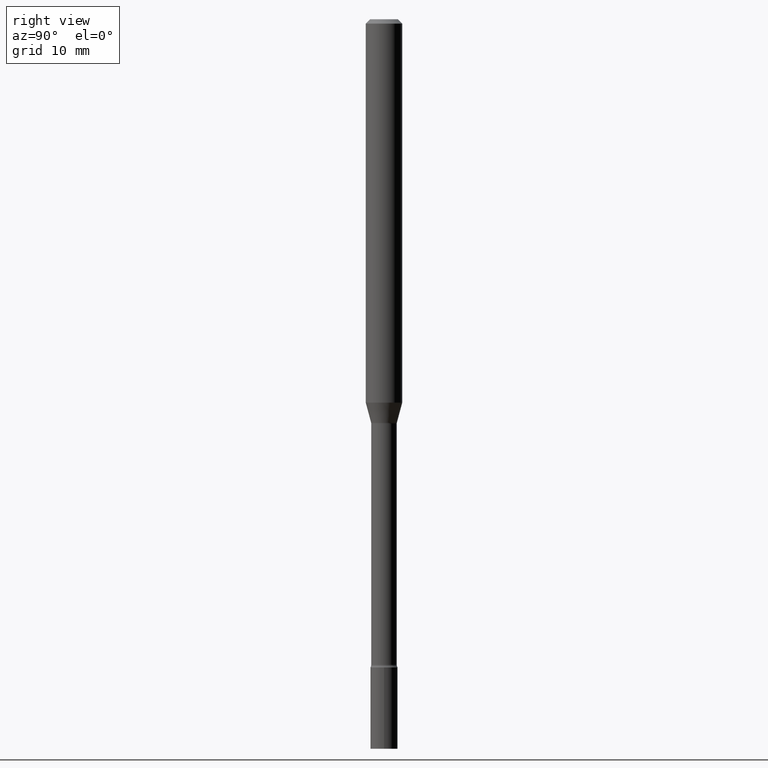
[diagram: clean part render]
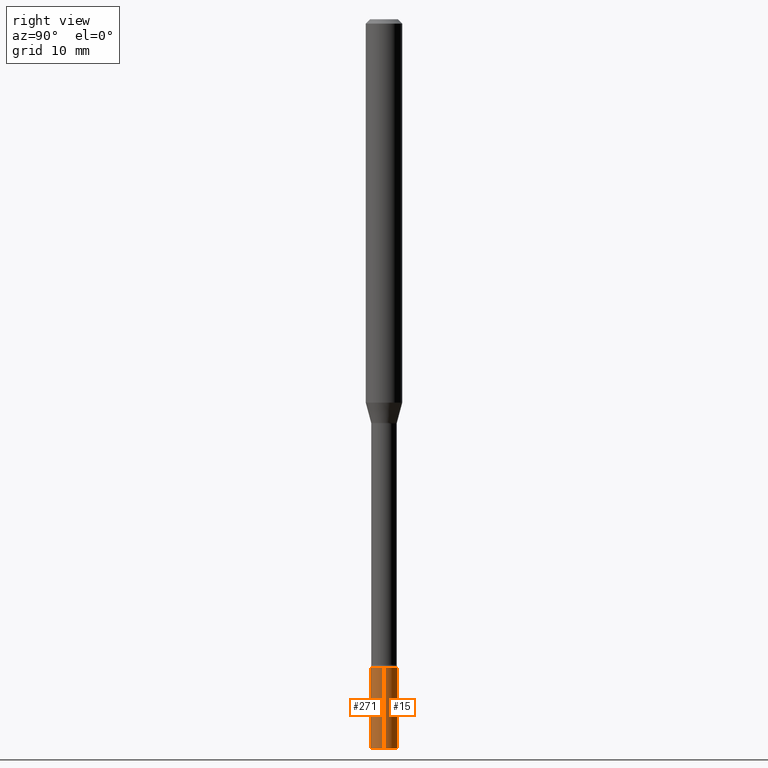
[diagram: same view with one multi-face feature highlighted, each face labeled with its STEP entity id]
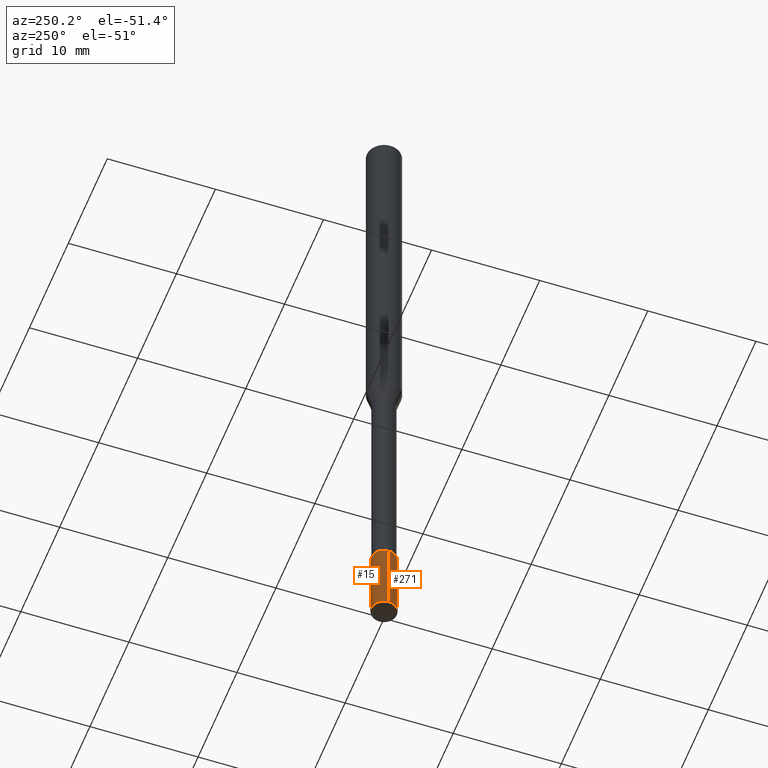
[diagram: same view with one multi-face feature highlighted, each face labeled with its STEP entity id]
A machine part, right view. The highlighted faces form ONE feature: a constant-radius fillet chain: 2 tangent blend faces with common blend radius 1.1811 mm. The faces share edges in the B-rep.
A second angle (auxiliary view) of the same feature is appended — it is thin or edge-on in the first view.
Their STEP definitions:
[1] entity #271 (Cylinder):
#7 = CARTESIAN_POINT ( 'NONE',  ( 0.000000000000000000, 0.000000000000000000, 0.000000000000000000 ) ) ;
#26 = DIRECTION ( 'NONE',  ( 1.000000000000000000, -6.982962677686260400E-15, 0.000000000000000000 ) ) ;
#46 = DIRECTION ( 'NONE',  ( -2.445468806185136597E-29, 3.491481338843145583E-15, 1.000000000000000000 ) ) ;
#47 = FACE_OUTER_BOUND ( 'NONE', #159, .T. ) ;
#48 = EDGE_CURVE ( 'NONE', #72, #488, #349, .T. ) ;
#72 = VERTEX_POINT ( 'NONE', #146 ) ;
#95 = ORIENTED_EDGE ( 'NONE', *, *, #343, .F. ) ;
#103 = VECTOR ( 'NONE', #460, 39.37007874015748143 ) ;
#104 = CIRCLE ( 'NONE', #451, 0.04649999999999999967 ) ;
#106 = LINE ( 'NONE', #258, #103 ) ;
#109 = EDGE_CURVE ( 'NONE', #488, #370, #106, .T. ) ;
#132 = CARTESIAN_POINT ( 'NONE',  ( 6.113672015462842613E-29, -8.728703347107864943E-15, -2.500000000000000000 ) ) ;
#146 = CARTESIAN_POINT ( 'NONE',  ( -0.04649999999999999967, -7.911239328210799240E-15, -2.500000000000000000 ) ) ;
#159 = EDGE_LOOP ( 'NONE', ( #437, #319, #234, #95 ) ) ;
#165 = DIRECTION ( 'NONE',  ( -2.445468806185136597E-29, 3.491481338843145583E-15, 1.000000000000000000 ) ) ;
#176 = CYLINDRICAL_SURFACE ( 'NONE', #303, 0.04649999999999999967 ) ;
#220 = EDGE_CURVE ( 'NONE', #72, #402, #284, .T. ) ;
#234 = ORIENTED_EDGE ( 'NONE', *, *, #109, .T. ) ;
#236 = CARTESIAN_POINT ( 'NONE',  ( 0.04649999999999999967, -8.079287818083037216E-15, -2.221000000000000085 ) ) ;
#244 = CARTESIAN_POINT ( 'NONE',  ( -0.04649999999999999967, 3.304023721284465841E-16, -2.287304816968531530E-30 ) ) ;
#258 = CARTESIAN_POINT ( 'NONE',  ( 0.04649999999999999967, -3.247077645124114474E-16, 2.267422200745110326E-30 ) ) ;
#271 = ADVANCED_FACE ( 'NONE', ( #47 ), #176, .T. ) ;
#284 = LINE ( 'NONE', #244, #301 ) ;
#290 = CARTESIAN_POINT ( 'NONE',  ( -0.04649999999999999967, -7.911239328210799240E-15, -2.221000000000000085 ) ) ;
#301 = VECTOR ( 'NONE', #410, 39.37007874015748143 ) ;
#303 = AXIS2_PLACEMENT_3D ( 'NONE', #7, #165, #404 ) ;
#319 = ORIENTED_EDGE ( 'NONE', *, *, #48, .T. ) ;
#343 = EDGE_CURVE ( 'NONE', #402, #370, #104, .T. ) ;
#349 = CIRCLE ( 'NONE', #372, 0.04649999999999999967 ) ;
#357 = DIRECTION ( 'NONE',  ( -2.445468806185136597E-29, 3.491481338843145583E-15, 1.000000000000000000 ) ) ;
#362 = CARTESIAN_POINT ( 'NONE',  ( 5.431386218537188310E-29, -7.754580053570626508E-15, -2.221000000000000085 ) ) ;
#370 = VERTEX_POINT ( 'NONE', #236 ) ;
#372 = AXIS2_PLACEMENT_3D ( 'NONE', #132, #46, #26 ) ;
#402 = VERTEX_POINT ( 'NONE', #290 ) ;
#404 = DIRECTION ( 'NONE',  ( 1.000000000000000000, -6.982962677686267499E-15, 4.876176775795936353E-29 ) ) ;
#410 = DIRECTION ( 'NONE',  ( -2.445468806185136877E-29, 3.491481338843145188E-15, 1.000000000000000000 ) ) ;
#414 = CARTESIAN_POINT ( 'NONE',  ( 0.04649999999999999967, -9.053411111620275650E-15, -2.500000000000000000 ) ) ;
#437 = ORIENTED_EDGE ( 'NONE', *, *, #220, .F. ) ;
#451 = AXIS2_PLACEMENT_3D ( 'NONE', #362, #357, #482 ) ;
#460 = DIRECTION ( 'NONE',  ( -2.445468806185136877E-29, 3.491481338843145188E-15, 1.000000000000000000 ) ) ;
#482 = DIRECTION ( 'NONE',  ( 1.000000000000000000, -6.982962677686260400E-15, 0.000000000000000000 ) ) ;
#488 = VERTEX_POINT ( 'NONE', #414 ) ;
[2] entity #15 (Cylinder):
#15 = ADVANCED_FACE ( 'NONE', ( #445 ), #293, .T. ) ;
#72 = VERTEX_POINT ( 'NONE', #146 ) ;
#80 = DIRECTION ( 'NONE',  ( -2.445468806185136597E-29, 3.491481338843145583E-15, 1.000000000000000000 ) ) ;
#90 = DIRECTION ( 'NONE',  ( 1.000000000000000000, -6.982962677686260400E-15, 0.000000000000000000 ) ) ;
#103 = VECTOR ( 'NONE', #460, 39.37007874015748143 ) ;
#106 = LINE ( 'NONE', #258, #103 ) ;
#109 = EDGE_CURVE ( 'NONE', #488, #370, #106, .T. ) ;
#134 = ORIENTED_EDGE ( 'NONE', *, *, #109, .F. ) ;
#146 = CARTESIAN_POINT ( 'NONE',  ( -0.04649999999999999967, -7.911239328210799240E-15, -2.500000000000000000 ) ) ;
#209 = DIRECTION ( 'NONE',  ( 1.000000000000000000, -6.982962677686267499E-15, 4.876176775795936353E-29 ) ) ;
#220 = EDGE_CURVE ( 'NONE', #72, #402, #284, .T. ) ;
#236 = CARTESIAN_POINT ( 'NONE',  ( 0.04649999999999999967, -8.079287818083037216E-15, -2.221000000000000085 ) ) ;
#241 = AXIS2_PLACEMENT_3D ( 'NONE', #344, #347, #499 ) ;
#242 = CARTESIAN_POINT ( 'NONE',  ( 5.431386218537188310E-29, -7.754580053570626508E-15, -2.221000000000000085 ) ) ;
#244 = CARTESIAN_POINT ( 'NONE',  ( -0.04649999999999999967, 3.304023721284465841E-16, -2.287304816968531530E-30 ) ) ;
#246 = CARTESIAN_POINT ( 'NONE',  ( 0.000000000000000000, 0.000000000000000000, 0.000000000000000000 ) ) ;
#247 = EDGE_LOOP ( 'NONE', ( #267, #270, #394, #134 ) ) ;
#258 = CARTESIAN_POINT ( 'NONE',  ( 0.04649999999999999967, -3.247077645124114474E-16, 2.267422200745110326E-30 ) ) ;
#263 = EDGE_CURVE ( 'NONE', #370, #402, #505, .T. ) ;
#267 = ORIENTED_EDGE ( 'NONE', *, *, #491, .T. ) ;
#269 = AXIS2_PLACEMENT_3D ( 'NONE', #242, #487, #90 ) ;
#270 = ORIENTED_EDGE ( 'NONE', *, *, #220, .T. ) ;
#284 = LINE ( 'NONE', #244, #301 ) ;
#289 = CIRCLE ( 'NONE', #241, 0.04649999999999999967 ) ;
#290 = CARTESIAN_POINT ( 'NONE',  ( -0.04649999999999999967, -7.911239328210799240E-15, -2.221000000000000085 ) ) ;
#293 = CYLINDRICAL_SURFACE ( 'NONE', #512, 0.04649999999999999967 ) ;
#301 = VECTOR ( 'NONE', #410, 39.37007874015748143 ) ;
#344 = CARTESIAN_POINT ( 'NONE',  ( 6.113672015462842613E-29, -8.728703347107864943E-15, -2.500000000000000000 ) ) ;
#347 = DIRECTION ( 'NONE',  ( -2.445468806185136597E-29, 3.491481338843145583E-15, 1.000000000000000000 ) ) ;
#370 = VERTEX_POINT ( 'NONE', #236 ) ;
#394 = ORIENTED_EDGE ( 'NONE', *, *, #263, .F. ) ;
#402 = VERTEX_POINT ( 'NONE', #290 ) ;
#410 = DIRECTION ( 'NONE',  ( -2.445468806185136877E-29, 3.491481338843145188E-15, 1.000000000000000000 ) ) ;
#414 = CARTESIAN_POINT ( 'NONE',  ( 0.04649999999999999967, -9.053411111620275650E-15, -2.500000000000000000 ) ) ;
#445 = FACE_OUTER_BOUND ( 'NONE', #247, .T. ) ;
#460 = DIRECTION ( 'NONE',  ( -2.445468806185136877E-29, 3.491481338843145188E-15, 1.000000000000000000 ) ) ;
#487 = DIRECTION ( 'NONE',  ( -2.445468806185136597E-29, 3.491481338843145583E-15, 1.000000000000000000 ) ) ;
#488 = VERTEX_POINT ( 'NONE', #414 ) ;
#491 = EDGE_CURVE ( 'NONE', #488, #72, #289, .T. ) ;
#499 = DIRECTION ( 'NONE',  ( 1.000000000000000000, -6.982962677686260400E-15, 0.000000000000000000 ) ) ;
#505 = CIRCLE ( 'NONE', #269, 0.04649999999999999967 ) ;
#512 = AXIS2_PLACEMENT_3D ( 'NONE', #246, #80, #209 ) ;